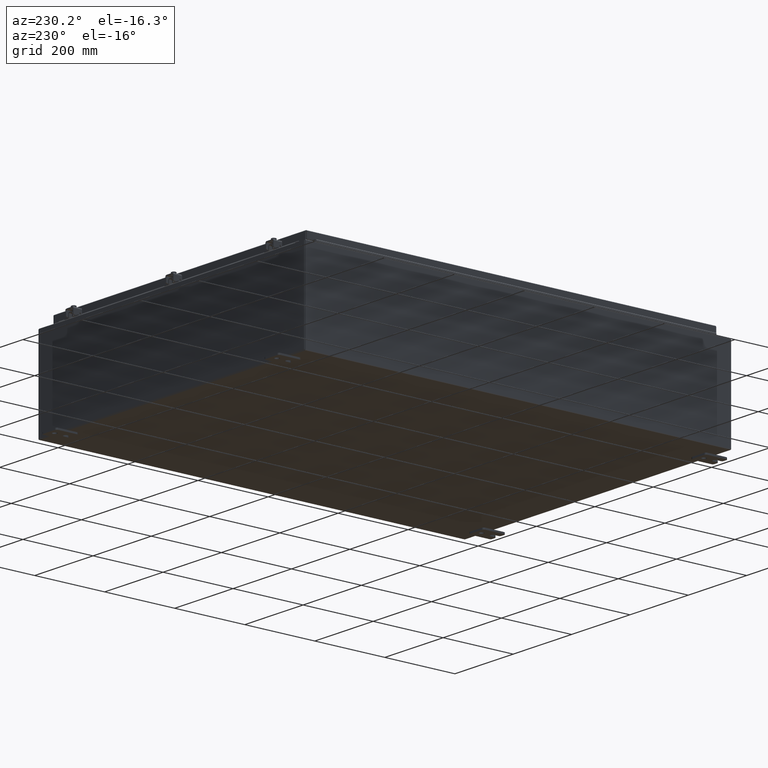
[diagram: clean part render]
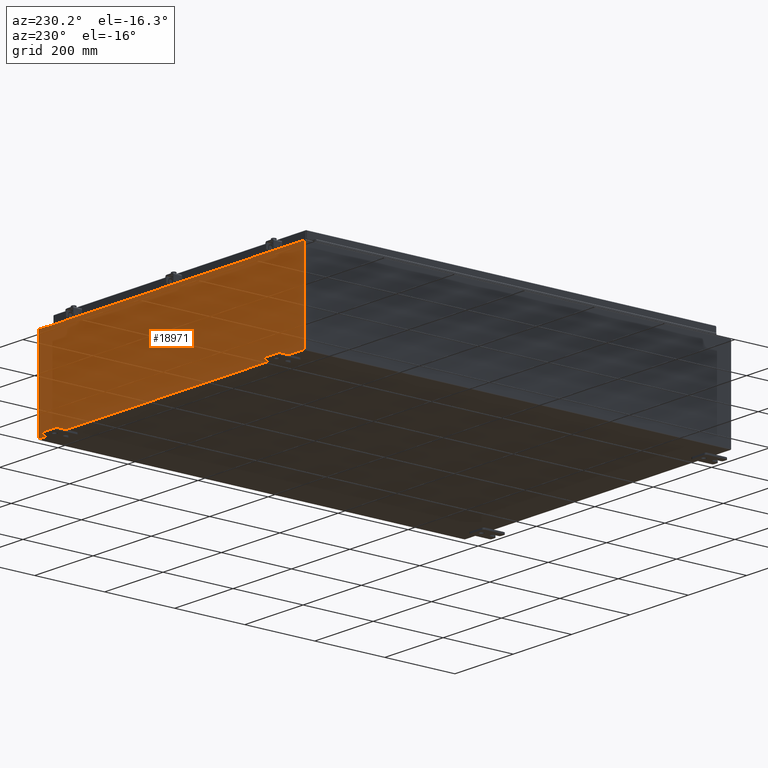
[diagram: same view with one face highlighted and labeled with its STEP entity id]
A machine part, auxiliary view. The second image highlights one B-rep face of the part: STEP entity #18971.
In plain terms, the highlighted planar face has unit normal (0, -1, 0).
Its self-contained STEP definition (entity closure, byte-faithful):
#58 = CARTESIAN_POINT ( 'NONE',  ( -16.67455000000000000, -0.0000000000000000000, 0.0000000000000000000 ) ) ;
#157 = VECTOR ( 'NONE', #40638, 39.37007874015748100 ) ;
#266 = EDGE_CURVE ( 'NONE', #14726, #39027, #33706, .T. ) ;
#1149 = DIRECTION ( 'NONE',  ( 0.0000000000000000000, 0.0000000000000000000, -1.000000000000000000 ) ) ;
#1400 = LINE ( 'NONE', #45368, #44313 ) ;
#1805 = CARTESIAN_POINT ( 'NONE',  ( 16.67455000000000700, 0.0000000000000000000, 4.925300000000000000 ) ) ;
#2385 = EDGE_CURVE ( 'NONE', #17530, #10091, #24376, .T. ) ;
#2451 = ORIENTED_EDGE ( 'NONE', *, *, #2385, .F. ) ;
#2606 = CARTESIAN_POINT ( 'NONE',  ( 0.0000000000000000000, 0.0000000000000000000, 0.0000000000000000000 ) ) ;
#3166 = ORIENTED_EDGE ( 'NONE', *, *, #41063, .T. ) ;
#3898 = DIRECTION ( 'NONE',  ( 0.0000000000000000000, 0.0000000000000000000, -1.000000000000000000 ) ) ;
#4485 = ORIENTED_EDGE ( 'NONE', *, *, #7663, .F. ) ;
#5665 = CARTESIAN_POINT ( 'NONE',  ( 16.67454999999957700, -0.0000000000000000000, -1.447541957108341500E-012 ) ) ;
#7450 = AXIS2_PLACEMENT_3D ( 'NONE', #51020, #26116, #1149 ) ;
#7638 = AXIS2_PLACEMENT_3D ( 'NONE', #10908, #31198, #47664 ) ;
#7663 = EDGE_CURVE ( 'NONE', #39027, #52645, #47552, .T. ) ;
#7968 = CARTESIAN_POINT ( 'NONE',  ( -16.67455000000000000, 0.0000000000000000000, 4.874950000000000100 ) ) ;
#8407 = ORIENTED_EDGE ( 'NONE', *, *, #49290, .F. ) ;
#8566 = CARTESIAN_POINT ( 'NONE',  ( 16.63720000000000400, 0.0000000000000000000, 4.874950000000000100 ) ) ;
#8876 = DIRECTION ( 'NONE',  ( -8.681145560800009800E-014, 0.0000000000000000000, -1.000000000000000000 ) ) ;
#9767 = ORIENTED_EDGE ( 'NONE', *, *, #266, .F. ) ;
#10091 = VERTEX_POINT ( 'NONE', #10881 ) ;
#10526 = ORIENTED_EDGE ( 'NONE', *, *, #24534, .F. ) ;
#10625 = EDGE_CURVE ( 'NONE', #26488, #30719, #20707, .T. ) ;
#10881 = CARTESIAN_POINT ( 'NONE',  ( -16.63720000000000400, -0.0000000000000000000, 4.874950000000000100 ) ) ;
#10908 = CARTESIAN_POINT ( 'NONE',  ( 16.65587500000000200, 0.0000000000000000000, 4.874950000000000100 ) ) ;
#10966 = FACE_OUTER_BOUND ( 'NONE', #27459, .T. ) ;
#11036 = DIRECTION ( 'NONE',  ( 0.0000000000000000000, -0.0000000000000000000, -1.000000000000000000 ) ) ;
#12921 = CARTESIAN_POINT ( 'NONE',  ( -17.92530000000000000, 0.0000000000000000000, -4.925300000000000000 ) ) ;
#13610 = EDGE_CURVE ( 'NONE', #14726, #26488, #49155, .T. ) ;
#14726 = VERTEX_POINT ( 'NONE', #1805 ) ;
#14821 = PLANE ( 'NONE',  #28455 ) ;
#14844 = LINE ( 'NONE', #23434, #46698 ) ;
#15923 = CARTESIAN_POINT ( 'NONE',  ( -16.63720000000000400, -7.171100983368691200E-016, 4.912300000000000100 ) ) ;
#16935 = VERTEX_POINT ( 'NONE', #7968 ) ;
#17530 = VERTEX_POINT ( 'NONE', #15923 ) ;
#18114 = CARTESIAN_POINT ( 'NONE',  ( -17.92530000000000000, 0.0000000000000000000, 4.925300000000000000 ) ) ;
#18971 = ADVANCED_FACE ( 'NONE', ( #10966 ), #14821, .F. ) ;
#19401 = VECTOR ( 'NONE', #41353, 39.37007874015748100 ) ;
#19619 = CARTESIAN_POINT ( 'NONE',  ( 16.63720000000000400, 0.0000000000000000000, 4.912300000000000100 ) ) ;
#19783 = CARTESIAN_POINT ( 'NONE',  ( 17.92530000000000000, 0.0000000000000000000, 4.925300000000000000 ) ) ;
#20707 = LINE ( 'NONE', #45693, #19401 ) ;
#23002 = VERTEX_POINT ( 'NONE', #12921 ) ;
#23434 = CARTESIAN_POINT ( 'NONE',  ( 16.63720000000000400, 0.0000000000000000000, 0.0000000000000000000 ) ) ;
#24376 = LINE ( 'NONE', #37857, #45114 ) ;
#24534 = EDGE_CURVE ( 'NONE', #10091, #16935, #30546, .T. ) ;
#26116 = DIRECTION ( 'NONE',  ( -0.0000000000000000000, 1.000000000000000000, -0.0000000000000000000 ) ) ;
#26122 = ORIENTED_EDGE ( 'NONE', *, *, #41217, .F. ) ;
#26488 = VERTEX_POINT ( 'NONE', #19783 ) ;
#27039 = VECTOR ( 'NONE', #34794, 39.37007874015748100 ) ;
#27446 = CARTESIAN_POINT ( 'NONE',  ( 16.67455000000000000, 0.0000000000000000000, 4.874950000000000100 ) ) ;
#27459 = EDGE_LOOP ( 'NONE', ( #26122, #10526, #2451, #29235, #8407, #4485, #9767, #52017, #35149, #50787, #44873, #3166 ) ) ;
#27613 = DIRECTION ( 'NONE',  ( 0.0000000000000000000, 0.0000000000000000000, 1.000000000000000000 ) ) ;
#28455 = AXIS2_PLACEMENT_3D ( 'NONE', #2606, #35927, #11036 ) ;
#29235 = ORIENTED_EDGE ( 'NONE', *, *, #34401, .T. ) ;
#29706 = EDGE_CURVE ( 'NONE', #30719, #23002, #52219, .T. ) ;
#29811 = VERTEX_POINT ( 'NONE', #19619 ) ;
#30133 = VECTOR ( 'NONE', #31377, 39.37007874015748100 ) ;
#30546 = CIRCLE ( 'NONE', #7450, 0.01867499999999949400 ) ;
#30719 = VERTEX_POINT ( 'NONE', #46912 ) ;
#31107 = EDGE_CURVE ( 'NONE', #23002, #35399, #1400, .T. ) ;
#31198 = DIRECTION ( 'NONE',  ( -0.0000000000000000000, 1.000000000000000000, -0.0000000000000000000 ) ) ;
#31377 = DIRECTION ( 'NONE',  ( -1.000000000000000000, -0.0000000000000000000, -0.0000000000000000000 ) ) ;
#32190 = VECTOR ( 'NONE', #47995, 39.37007874015748100 ) ;
#32397 = VECTOR ( 'NONE', #8876, 39.37007874015748100 ) ;
#33706 = LINE ( 'NONE', #5665, #32397 ) ;
#34311 = VERTEX_POINT ( 'NONE', #51687 ) ;
#34401 = EDGE_CURVE ( 'NONE', #17530, #29811, #41907, .T. ) ;
#34732 = LINE ( 'NONE', #49013, #157 ) ;
#34794 = DIRECTION ( 'NONE',  ( 1.000000000000000000, 0.0000000000000000000, 0.0000000000000000000 ) ) ;
#35149 = ORIENTED_EDGE ( 'NONE', *, *, #10625, .T. ) ;
#35399 = VERTEX_POINT ( 'NONE', #18114 ) ;
#35494 = CARTESIAN_POINT ( 'NONE',  ( -16.63720000000000400, -7.171100983368691200E-016, 4.912300000000000100 ) ) ;
#35927 = DIRECTION ( 'NONE',  ( 0.0000000000000000000, -1.000000000000000000, 0.0000000000000000000 ) ) ;
#37360 = VECTOR ( 'NONE', #46046, 39.37007874015748100 ) ;
#37857 = CARTESIAN_POINT ( 'NONE',  ( -16.63720000000000400, -0.0000000000000000000, 0.0000000000000000000 ) ) ;
#39027 = VERTEX_POINT ( 'NONE', #27446 ) ;
#39367 = CARTESIAN_POINT ( 'NONE',  ( -17.92530000000000000, 0.0000000000000000000, -4.925300000000000000 ) ) ;
#40257 = CARTESIAN_POINT ( 'NONE',  ( -17.92530000000000000, 0.0000000000000000000, 4.925300000000000000 ) ) ;
#40638 = DIRECTION ( 'NONE',  ( 1.000000000000000000, 0.0000000000000000000, 0.0000000000000000000 ) ) ;
#41063 = EDGE_CURVE ( 'NONE', #35399, #34311, #34732, .T. ) ;
#41217 = EDGE_CURVE ( 'NONE', #16935, #34311, #48400, .T. ) ;
#41353 = DIRECTION ( 'NONE',  ( 0.0000000000000000000, 0.0000000000000000000, -1.000000000000000000 ) ) ;
#41907 = LINE ( 'NONE', #35494, #32190 ) ;
#44313 = VECTOR ( 'NONE', #49609, 39.37007874015748100 ) ;
#44873 = ORIENTED_EDGE ( 'NONE', *, *, #31107, .T. ) ;
#45114 = VECTOR ( 'NONE', #3898, 39.37007874015748100 ) ;
#45368 = CARTESIAN_POINT ( 'NONE',  ( -17.92530000000000000, 0.0000000000000000000, 4.925300000000000000 ) ) ;
#45693 = CARTESIAN_POINT ( 'NONE',  ( 17.92530000000000000, 0.0000000000000000000, 4.925300000000000000 ) ) ;
#46046 = DIRECTION ( 'NONE',  ( 0.0000000000000000000, 0.0000000000000000000, 1.000000000000000000 ) ) ;
#46698 = VECTOR ( 'NONE', #27613, 39.37007874015748100 ) ;
#46912 = CARTESIAN_POINT ( 'NONE',  ( 17.92530000000000000, 0.0000000000000000000, -4.925300000000000000 ) ) ;
#47552 = CIRCLE ( 'NONE', #7638, 0.01867499999999949400 ) ;
#47664 = DIRECTION ( 'NONE',  ( 0.0000000000000000000, 0.0000000000000000000, -1.000000000000000000 ) ) ;
#47995 = DIRECTION ( 'NONE',  ( 1.000000000000000000, 0.0000000000000000000, 0.0000000000000000000 ) ) ;
#48400 = LINE ( 'NONE', #58, #37360 ) ;
#49013 = CARTESIAN_POINT ( 'NONE',  ( -17.92530000000000000, 0.0000000000000000000, 4.925300000000000000 ) ) ;
#49155 = LINE ( 'NONE', #40257, #27039 ) ;
#49290 = EDGE_CURVE ( 'NONE', #52645, #29811, #14844, .T. ) ;
#49609 = DIRECTION ( 'NONE',  ( -0.0000000000000000000, -0.0000000000000000000, 1.000000000000000000 ) ) ;
#50787 = ORIENTED_EDGE ( 'NONE', *, *, #29706, .T. ) ;
#51020 = CARTESIAN_POINT ( 'NONE',  ( -16.65587500000000200, 0.0000000000000000000, 4.874950000000000100 ) ) ;
#51687 = CARTESIAN_POINT ( 'NONE',  ( -16.67455000000000000, 0.0000000000000000000, 4.925300000000000000 ) ) ;
#52017 = ORIENTED_EDGE ( 'NONE', *, *, #13610, .T. ) ;
#52219 = LINE ( 'NONE', #39367, #30133 ) ;
#52645 = VERTEX_POINT ( 'NONE', #8566 ) ;